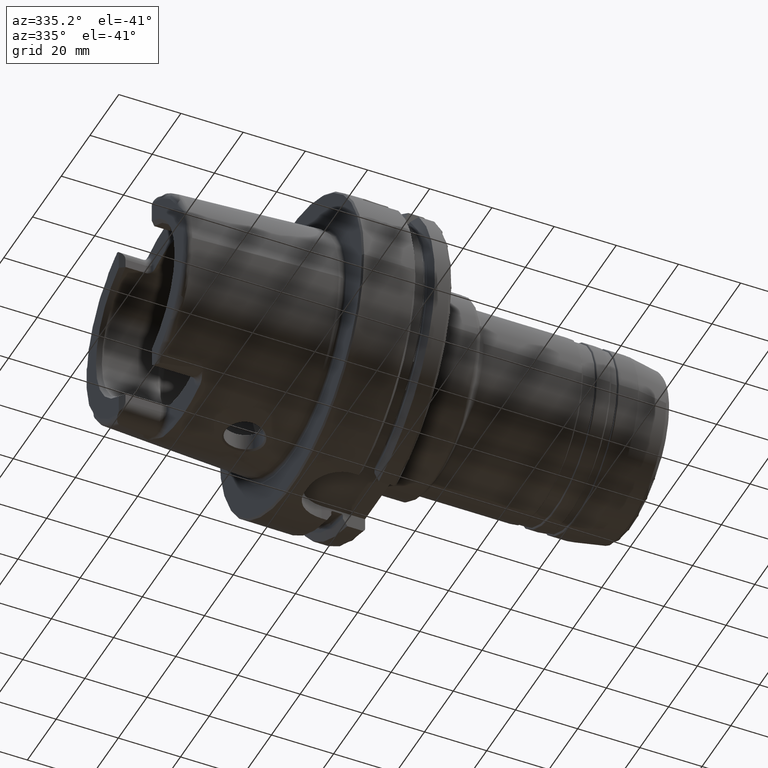
[diagram: clean part render]
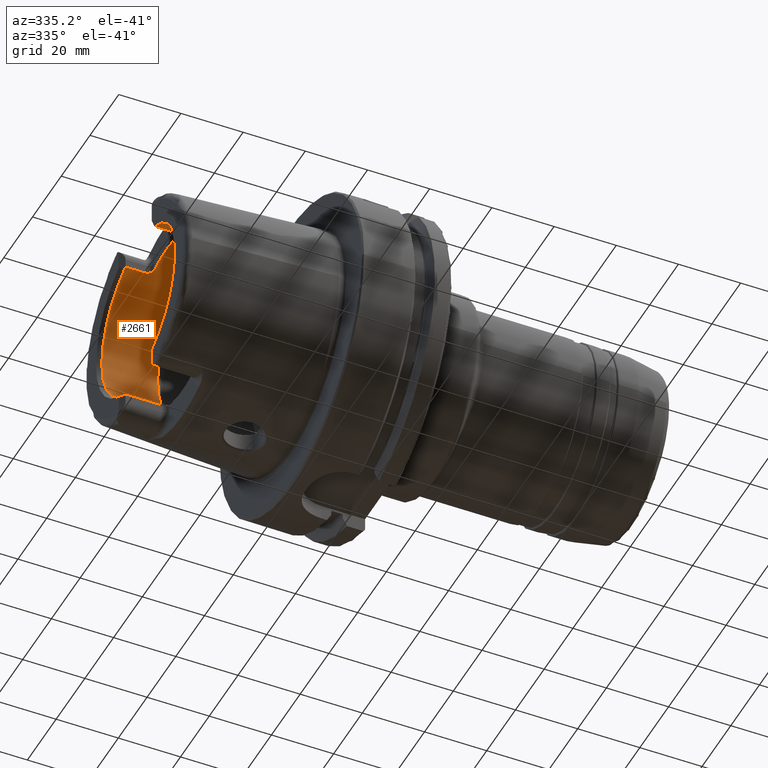
[diagram: same view with one face highlighted and labeled with its STEP entity id]
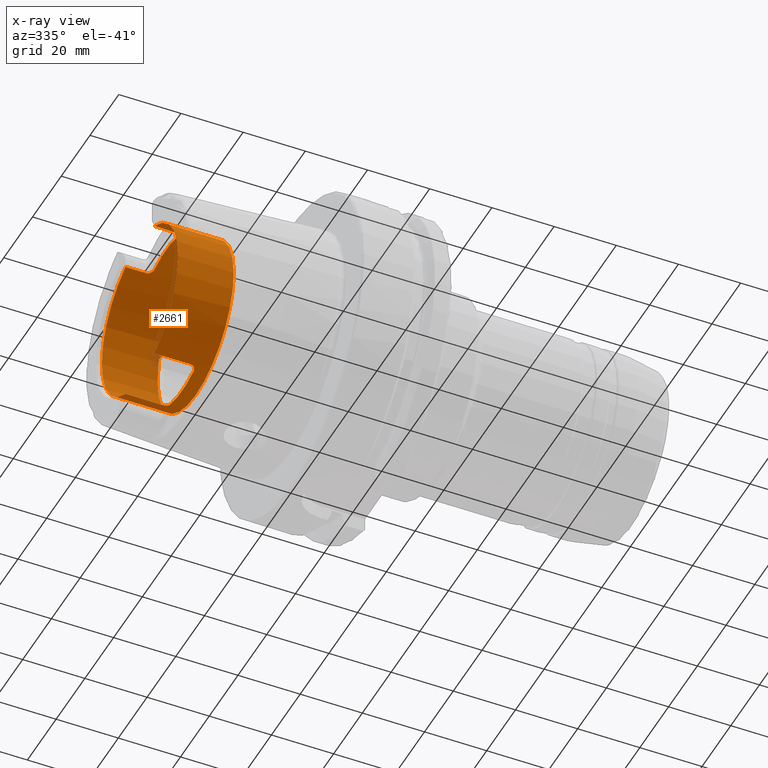
[diagram: x-ray of the same camera — body ghosted, the highlighted face saturated]
A machine part, auxiliary view. The second image highlights one B-rep face of the part: STEP entity #2661.
The next image is the same camera in x-ray: the body ghosted, the highlighted face saturated — about 3% of this face is hidden behind the body in this view.
In plain terms, the highlighted cylindrical surface (bore or boss wall) has radius 26.5 mm, axis along (-1, 0, 0).
Its self-contained STEP definition (entity closure, byte-faithful):
#81=B_SPLINE_CURVE_WITH_KNOTS('',3,(#5491,#5492,#5493,#5494,#5495,#5496,
#5497,#5498,#5499,#5500),.UNSPECIFIED.,.F.,.F.,(4,2,2,2,4),(0.307245873696209,
0.387318131676521,0.467390389656833,0.542677307505841,0.617964225354849),
 .UNSPECIFIED.);
#82=B_SPLINE_CURVE_WITH_KNOTS('',3,(#5509,#5510,#5511,#5512,#5513,#5514,
#5515,#5516,#5517,#5518),.UNSPECIFIED.,.F.,.F.,(4,2,2,2,4),(0.61796422535485,
0.694491364966707,0.771018504578565,0.849854597041439,0.928690689504313),
 .UNSPECIFIED.);
#83=B_SPLINE_CURVE_WITH_KNOTS('',3,(#5527,#5528,#5529,#5530,#5531,#5532,
#5533,#5534,#5535,#5536),.UNSPECIFIED.,.F.,.F.,(4,2,2,2,4),(0.617964225354849,
0.693251143203857,0.768538061052865,0.848610319033177,0.928682577013489),
 .UNSPECIFIED.);
#84=B_SPLINE_CURVE_WITH_KNOTS('',3,(#5550,#5551,#5552,#5553,#5554,#5555,
#5556,#5557,#5558,#5559),.UNSPECIFIED.,.F.,.F.,(4,2,2,2,4),(0.307245873696209,
0.387318131676521,0.467390389656833,0.542677307505841,0.617964225354849),
 .UNSPECIFIED.);
#127=CYLINDRICAL_SURFACE('',#3007,26.5);
#211=LINE('',#4242,#326);
#217=LINE('',#4336,#332);
#223=LINE('',#4352,#338);
#227=LINE('',#4418,#342);
#288=LINE('',#5576,#403);
#326=VECTOR('',#3411,10.);
#332=VECTOR('',#3441,10.);
#338=VECTOR('',#3455,10.);
#342=VECTOR('',#3479,10.);
#403=VECTOR('',#3792,26.5);
#537=FACE_OUTER_BOUND('',#680,.T.);
#680=EDGE_LOOP('',(#2341,#2342,#2343,#2344,#2345,#2346,#2347,#2348,#2349,
#2350,#2351,#2352,#2353,#2354,#2355,#2356,#2357,#2358));
#893=CIRCLE('',#2995,26.5);
#898=CIRCLE('',#3006,26.5);
#899=CIRCLE('',#3008,26.5);
#900=CIRCLE('',#3009,26.5);
#901=CIRCLE('',#3010,26.5);
#902=CIRCLE('',#3011,26.5);
#903=CIRCLE('',#3012,26.5);
#904=CIRCLE('',#3013,26.5);
#1054=VERTEX_POINT('',#4232);
#1057=VERTEX_POINT('',#4240);
#1066=VERTEX_POINT('',#4289);
#1073=VERTEX_POINT('',#4335);
#1076=VERTEX_POINT('',#4342);
#1079=VERTEX_POINT('',#4350);
#1086=VERTEX_POINT('',#4385);
#1091=VERTEX_POINT('',#4417);
#1204=VERTEX_POINT('',#5489);
#1206=VERTEX_POINT('',#5508);
#1208=VERTEX_POINT('',#5526);
#1209=VERTEX_POINT('',#5543);
#1211=VERTEX_POINT('',#5570);
#1212=VERTEX_POINT('',#5571);
#1213=VERTEX_POINT('',#5573);
#1214=VERTEX_POINT('',#5575);
#1384=EDGE_CURVE('',#1054,#1057,#211,.T.);
#1402=EDGE_CURVE('',#1073,#1066,#217,.T.);
#1410=EDGE_CURVE('',#1076,#1079,#223,.T.);
#1424=EDGE_CURVE('',#1091,#1086,#227,.T.);
#1589=EDGE_CURVE('',#1204,#1079,#81,.T.);
#1593=EDGE_CURVE('',#1091,#1206,#82,.T.);
#1598=EDGE_CURVE('',#1073,#1208,#83,.T.);
#1602=EDGE_CURVE('',#1209,#1208,#893,.T.);
#1606=EDGE_CURVE('',#1209,#1057,#84,.T.);
#1610=EDGE_CURVE('',#1204,#1206,#898,.T.);
#1611=EDGE_CURVE('',#1211,#1212,#899,.T.);
#1612=EDGE_CURVE('',#1213,#1211,#900,.T.);
#1613=EDGE_CURVE('',#1213,#1214,#288,.T.);
#1614=EDGE_CURVE('',#1076,#1214,#901,.T.);
#1615=EDGE_CURVE('',#1054,#1086,#902,.T.);
#1616=EDGE_CURVE('',#1214,#1066,#903,.T.);
#1617=EDGE_CURVE('',#1212,#1213,#904,.T.);
#2341=ORIENTED_EDGE('',*,*,#1611,.F.);
#2342=ORIENTED_EDGE('',*,*,#1612,.F.);
#2343=ORIENTED_EDGE('',*,*,#1613,.T.);
#2344=ORIENTED_EDGE('',*,*,#1614,.F.);
#2345=ORIENTED_EDGE('',*,*,#1410,.T.);
#2346=ORIENTED_EDGE('',*,*,#1589,.F.);
#2347=ORIENTED_EDGE('',*,*,#1610,.T.);
#2348=ORIENTED_EDGE('',*,*,#1593,.F.);
#2349=ORIENTED_EDGE('',*,*,#1424,.T.);
#2350=ORIENTED_EDGE('',*,*,#1615,.F.);
#2351=ORIENTED_EDGE('',*,*,#1384,.T.);
#2352=ORIENTED_EDGE('',*,*,#1606,.F.);
#2353=ORIENTED_EDGE('',*,*,#1602,.T.);
#2354=ORIENTED_EDGE('',*,*,#1598,.F.);
#2355=ORIENTED_EDGE('',*,*,#1402,.T.);
#2356=ORIENTED_EDGE('',*,*,#1616,.F.);
#2357=ORIENTED_EDGE('',*,*,#1613,.F.);
#2358=ORIENTED_EDGE('',*,*,#1617,.F.);
#2661=ADVANCED_FACE('',(#537),#127,.F.);
#2995=AXIS2_PLACEMENT_3D('',#5544,#3760,#3761);
#3006=AXIS2_PLACEMENT_3D('',#5568,#3784,#3785);
#3007=AXIS2_PLACEMENT_3D('',#5569,#3786,#3787);
#3008=AXIS2_PLACEMENT_3D('',#5572,#3788,#3789);
#3009=AXIS2_PLACEMENT_3D('',#5574,#3790,#3791);
#3010=AXIS2_PLACEMENT_3D('',#5577,#3793,#3794);
#3011=AXIS2_PLACEMENT_3D('',#5578,#3795,#3796);
#3012=AXIS2_PLACEMENT_3D('',#5579,#3797,#3798);
#3013=AXIS2_PLACEMENT_3D('',#5580,#3799,#3800);
#3411=DIRECTION('',(1.,0.,0.));
#3441=DIRECTION('',(-1.,0.,0.));
#3455=DIRECTION('',(1.,0.,0.));
#3479=DIRECTION('',(-1.,0.,0.));
#3760=DIRECTION('center_axis',(-1.,0.,0.));
#3761=DIRECTION('ref_axis',(0.,1.,0.));
#3784=DIRECTION('center_axis',(-1.,0.,0.));
#3785=DIRECTION('ref_axis',(0.,1.,0.));
#3786=DIRECTION('center_axis',(-1.,0.,0.));
#3787=DIRECTION('ref_axis',(0.,1.,0.));
#3788=DIRECTION('center_axis',(-1.,0.,0.));
#3789=DIRECTION('ref_axis',(0.,0.,1.));
#3790=DIRECTION('center_axis',(-1.,0.,0.));
#3791=DIRECTION('ref_axis',(0.,0.,1.));
#3792=DIRECTION('',(-1.,0.,0.));
#3793=DIRECTION('center_axis',(1.,0.,0.));
#3794=DIRECTION('ref_axis',(0.,-1.,0.));
#3795=DIRECTION('center_axis',(1.,0.,0.));
#3796=DIRECTION('ref_axis',(0.,-1.,0.));
#3797=DIRECTION('center_axis',(1.,0.,0.));
#3798=DIRECTION('ref_axis',(0.,-1.,0.));
#3799=DIRECTION('center_axis',(-1.,0.,0.));
#3800=DIRECTION('ref_axis',(0.,0.,1.));
#4232=CARTESIAN_POINT('',(-48.5,10.01,-24.5367051577835));
#4240=CARTESIAN_POINT('',(-37.,10.01,-24.5367051577835));
#4242=CARTESIAN_POINT('',(-40.2903629710818,10.01,-24.5367051577835));
#4289=CARTESIAN_POINT('',(-48.5,-10.01,-24.5367051577835));
#4335=CARTESIAN_POINT('',(-37.,-10.01,-24.5367051577835));
#4336=CARTESIAN_POINT('',(-40.2903629710818,-10.01,-24.5367051577835));
#4342=CARTESIAN_POINT('',(-48.5,-10.01,24.5367051577835));
#4350=CARTESIAN_POINT('',(-42.,-10.01,24.5367051577835));
#4352=CARTESIAN_POINT('',(-40.2903629710818,-10.01,24.5367051577835));
#4385=CARTESIAN_POINT('',(-48.5,10.01,24.5367051577835));
#4417=CARTESIAN_POINT('',(-42.,10.01,24.5367051577835));
#4418=CARTESIAN_POINT('',(-40.2903629710818,10.01,24.5367051577835));
#5489=CARTESIAN_POINT('',(-40.,-8.01,25.2604414054862));
#5491=CARTESIAN_POINT('Ctrl Pts',(-40.,-8.01,25.2604414054862));
#5492=CARTESIAN_POINT('Ctrl Pts',(-40.,-8.26442271458071,25.1797648285777));
#5493=CARTESIAN_POINT('Ctrl Pts',(-40.0513332778729,-8.53503831367686,25.0892968127514));
#5494=CARTESIAN_POINT('Ctrl Pts',(-40.2604388709541,-9.03317850506395,24.9142806373643));
#5495=CARTESIAN_POINT('Ctrl Pts',(-40.4182028025644,-9.2607746884821,24.8299262887475));
#5496=CARTESIAN_POINT('Ctrl Pts',(-40.7762398849713,-9.61038047170956,24.6966285655713));
#5497=CARTESIAN_POINT('Ctrl Pts',(-40.996584045901,-9.75993653512726,24.6374761492843));
#5498=CARTESIAN_POINT('Ctrl Pts',(-41.4829332858843,-9.95981108540838,24.557356442995));
#5499=CARTESIAN_POINT('Ctrl Pts',(-41.74904360717,-10.01,24.5367051577835));
#5500=CARTESIAN_POINT('Ctrl Pts',(-42.,-10.01,24.5367051577835));
#5508=CARTESIAN_POINT('',(-40.,8.01,25.2604414054862));
#5509=CARTESIAN_POINT('Ctrl Pts',(-42.,10.01,24.5367051577835));
#5510=CARTESIAN_POINT('Ctrl Pts',(-41.7449095346271,10.01,24.5367051577835));
#5511=CARTESIAN_POINT('Ctrl Pts',(-41.4747619014646,9.95816285425487,24.5580391842641));
#5512=CARTESIAN_POINT('Ctrl Pts',(-40.9823460284033,9.75229566196282,24.640515927451));
#5513=CARTESIAN_POINT('Ctrl Pts',(-40.7599680829949,9.59839520774108,24.7013267120605));
#5514=CARTESIAN_POINT('Ctrl Pts',(-40.4063494382929,9.24477656303909,24.8358806096526));
#5515=CARTESIAN_POINT('Ctrl Pts',(-40.2529543645221,9.01930384320105,24.9192727261742));
#5516=CARTESIAN_POINT('Ctrl Pts',(-40.049776768453,8.52719637786957,25.0919293188873));
#5517=CARTESIAN_POINT('Ctrl Pts',(-40.,8.26049490494288,25.1810103236462));
#5518=CARTESIAN_POINT('Ctrl Pts',(-40.,8.01,25.2604414054862));
#5526=CARTESIAN_POINT('',(-35.,-8.01,-25.2604414054862));
#5527=CARTESIAN_POINT('Ctrl Pts',(-37.,-10.01,-24.5367051577835));
#5528=CARTESIAN_POINT('Ctrl Pts',(-36.74904360717,-10.01,-24.5367051577835));
#5529=CARTESIAN_POINT('Ctrl Pts',(-36.4829332858843,-9.95981108540838,-24.557356442995));
#5530=CARTESIAN_POINT('Ctrl Pts',(-35.9965840459011,-9.75993653512726,-24.6374761492843));
#5531=CARTESIAN_POINT('Ctrl Pts',(-35.7762398849713,-9.61038047170956,-24.6966285655713));
#5532=CARTESIAN_POINT('Ctrl Pts',(-35.4182028025644,-9.2607746884821,-24.8299262887475));
#5533=CARTESIAN_POINT('Ctrl Pts',(-35.2604388709541,-9.03317850506395,-24.9142806373643));
#5534=CARTESIAN_POINT('Ctrl Pts',(-35.0513332778729,-8.53503831367686,-25.0892968127514));
#5535=CARTESIAN_POINT('Ctrl Pts',(-35.,-8.26442271458071,-25.1797648285777));
#5536=CARTESIAN_POINT('Ctrl Pts',(-35.,-8.01,-25.2604414054862));
#5543=CARTESIAN_POINT('',(-35.,8.01,-25.2604414054862));
#5544=CARTESIAN_POINT('Origin',(-35.,0.,0.));
#5550=CARTESIAN_POINT('Ctrl Pts',(-35.,8.01,-25.2604414054862));
#5551=CARTESIAN_POINT('Ctrl Pts',(-35.,8.26442271458071,-25.1797648285777));
#5552=CARTESIAN_POINT('Ctrl Pts',(-35.0513332778729,8.53503831367686,-25.0892968127514));
#5553=CARTESIAN_POINT('Ctrl Pts',(-35.2604388709541,9.03317850506395,-24.9142806373643));
#5554=CARTESIAN_POINT('Ctrl Pts',(-35.4182028025644,9.2607746884821,-24.8299262887475));
#5555=CARTESIAN_POINT('Ctrl Pts',(-35.7762398849713,9.61038047170956,-24.6966285655713));
#5556=CARTESIAN_POINT('Ctrl Pts',(-35.9965840459011,9.75993653512726,-24.6374761492843));
#5557=CARTESIAN_POINT('Ctrl Pts',(-36.4829332858843,9.95981108540838,-24.557356442995));
#5558=CARTESIAN_POINT('Ctrl Pts',(-36.74904360717,10.01,-24.5367051577835));
#5559=CARTESIAN_POINT('Ctrl Pts',(-37.,10.01,-24.5367051577835));
#5568=CARTESIAN_POINT('Origin',(-40.,0.,0.));
#5569=CARTESIAN_POINT('Origin',(-40.2903629710818,0.,0.));
#5570=CARTESIAN_POINT('',(-30.5807259421637,26.5,0.));
#5571=CARTESIAN_POINT('',(-30.5807259421637,-3.24531401774049E-15,-26.5));
#5572=CARTESIAN_POINT('Origin',(-30.5807259421637,0.,0.));
#5573=CARTESIAN_POINT('',(-30.5807259421637,-26.5,3.24531401774049E-15));
#5574=CARTESIAN_POINT('Origin',(-30.5807259421637,0.,0.));
#5575=CARTESIAN_POINT('',(-48.5,-26.5,3.24531401774049E-15));
#5576=CARTESIAN_POINT('',(-40.2903629710818,-26.5,3.24531401774049E-15));
#5577=CARTESIAN_POINT('Origin',(-48.5,0.,0.));
#5578=CARTESIAN_POINT('Origin',(-48.5,0.,0.));
#5579=CARTESIAN_POINT('Origin',(-48.5,0.,0.));
#5580=CARTESIAN_POINT('Origin',(-30.5807259421637,0.,0.));